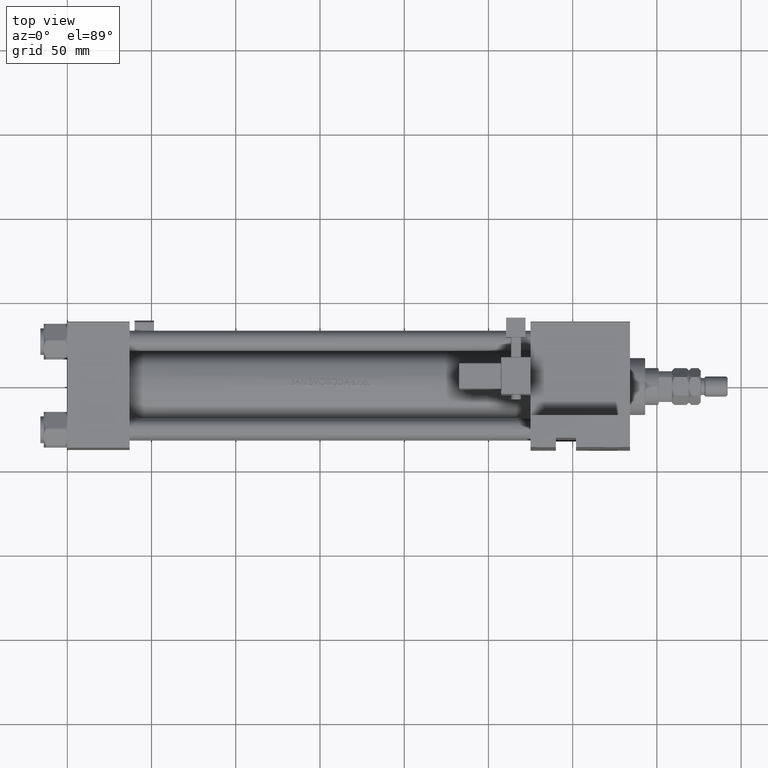
[diagram: clean part render]
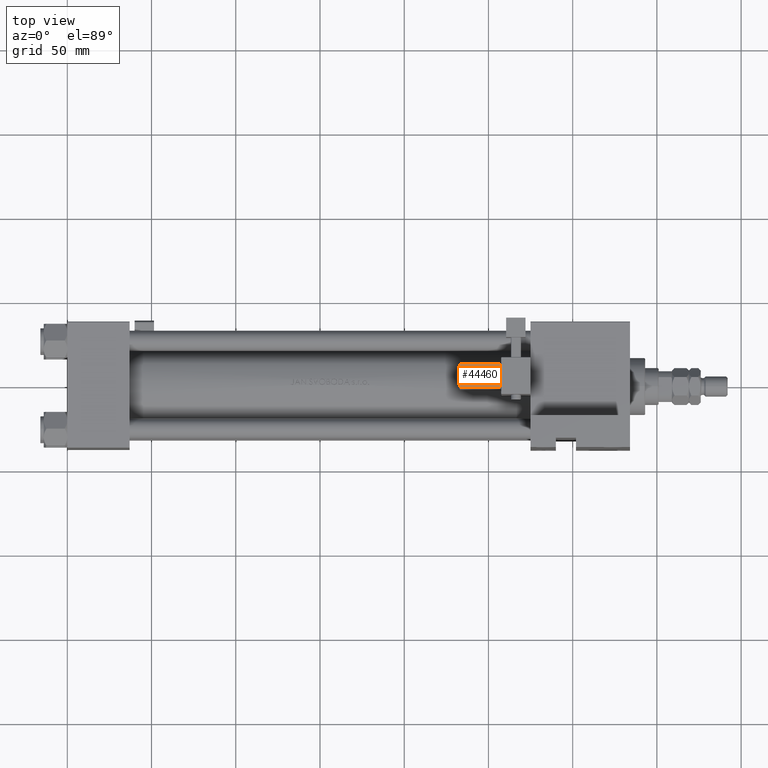
[diagram: same view with one face highlighted and labeled with its STEP entity id]
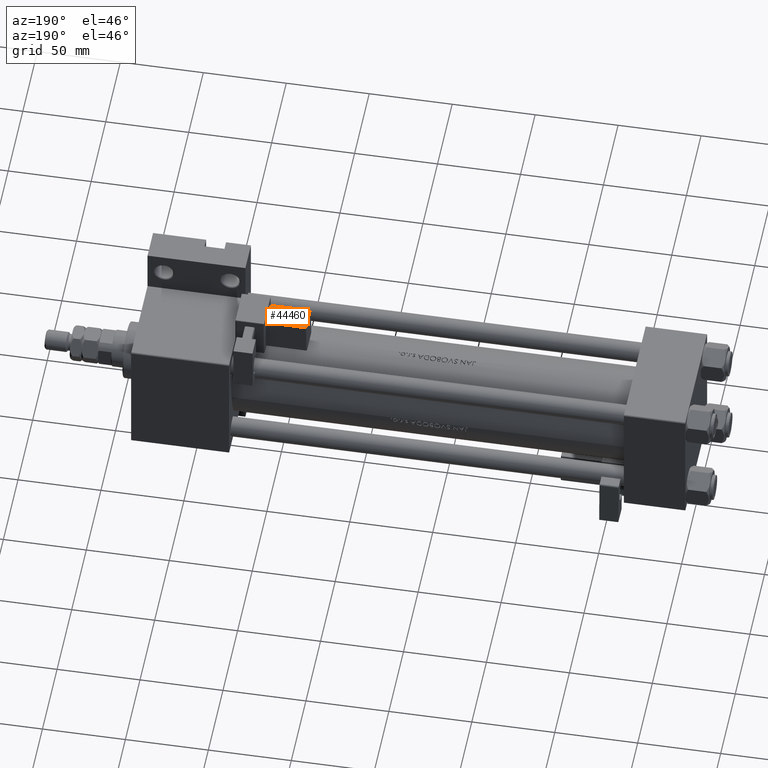
[diagram: same view with one face highlighted and labeled with its STEP entity id]
A machine part, top view. The second image highlights one B-rep face of the part: STEP entity #44460.
A second angle (auxiliary view) of the same face is appended — the face is thin or edge-on in the first view.
In plain terms, the highlighted planar face has unit normal (0, -0.0353, -0.9994).
Its self-contained STEP definition (entity closure, byte-faithful):
#900 = DIRECTION ( 'NONE',  ( -1.543213096464132036E-32, 1.000000000000000000, 1.156482317317871725E-16 ) ) ;
#1979 = LINE ( 'NONE', #45633, #12499 ) ;
#6668 = ORIENTED_EDGE ( 'NONE', *, *, #38631, .T. ) ;
#7202 = EDGE_CURVE ( 'NONE', #50569, #8168, #32795, .T. ) ;
#7595 = CARTESIAN_POINT ( 'NONE',  ( 33.75000000000000000, -21.24999999999999645, 2.000000000000010214 ) ) ;
#8168 = VERTEX_POINT ( 'NONE', #10679 ) ;
#8238 = VECTOR ( 'NONE', #9061, 1000.000000000000000 ) ;
#8397 = VERTEX_POINT ( 'NONE', #32490 ) ;
#8442 = CARTESIAN_POINT ( 'NONE',  ( 9.250000000000005329, -21.24999999999999645, 2.000000000000007105 ) ) ;
#9061 = DIRECTION ( 'NONE',  ( 1.000000000000000000, -0.000000000000000000, 1.334402673828313339E-16 ) ) ;
#10679 = CARTESIAN_POINT ( 'NONE',  ( 9.250000000000005329, -35.75000000000000000, 2.000000000000005329 ) ) ;
#12499 = VECTOR ( 'NONE', #21484, 1000.000000000000000 ) ;
#12593 = LINE ( 'NONE', #8442, #16330 ) ;
#12789 = CARTESIAN_POINT ( 'NONE',  ( 33.75000000000000000, -35.75000000000000000, 2.000000000000008438 ) ) ;
#16330 = VECTOR ( 'NONE', #900, 1000.000000000000000 ) ;
#18678 = VERTEX_POINT ( 'NONE', #47799 ) ;
#20858 = DIRECTION ( 'NONE',  ( -1.000000000000000000, 0.000000000000000000, -1.334402673828313339E-16 ) ) ;
#21484 = DIRECTION ( 'NONE',  ( 5.473822126268816683E-48, -1.000000000000000000, -1.156482317317871725E-16 ) ) ;
#22557 = ORIENTED_EDGE ( 'NONE', *, *, #26445, .T. ) ;
#24471 = CARTESIAN_POINT ( 'NONE',  ( 33.25000000000000000, -35.75000000000000000, 2.000000000000008438 ) ) ;
#26445 = EDGE_CURVE ( 'NONE', #18678, #8397, #44646, .T. ) ;
#27857 = DIRECTION ( 'NONE',  ( -1.334402673828313339E-16, -1.156482317317871725E-16, 1.000000000000000000 ) ) ;
#29034 = EDGE_CURVE ( 'NONE', #8397, #50569, #1979, .T. ) ;
#30358 = ORIENTED_EDGE ( 'NONE', *, *, #7202, .T. ) ;
#30388 = VECTOR ( 'NONE', #20858, 1000.000000000000000 ) ;
#32276 = FACE_OUTER_BOUND ( 'NONE', #49826, .T. ) ;
#32490 = CARTESIAN_POINT ( 'NONE',  ( 33.25000000000000000, -21.75000000000000000, 2.000000000000010214 ) ) ;
#32795 = LINE ( 'NONE', #12789, #30388 ) ;
#35921 = PLANE ( 'NONE',  #45411 ) ;
#38631 = EDGE_CURVE ( 'NONE', #8168, #18678, #12593, .T. ) ;
#44180 = ORIENTED_EDGE ( 'NONE', *, *, #29034, .T. ) ;
#44460 = ADVANCED_FACE ( 'NONE', ( #32276 ), #35921, .F. ) ;
#44646 = LINE ( 'NONE', #48296, #8238 ) ;
#45411 = AXIS2_PLACEMENT_3D ( 'NONE', #7595, #27857, #48134 ) ;
#45633 = CARTESIAN_POINT ( 'NONE',  ( 33.25000000000000000, -36.25000000000000000, 2.000000000000008438 ) ) ;
#47799 = CARTESIAN_POINT ( 'NONE',  ( 9.250000000000005329, -21.75000000000000000, 2.000000000000006661 ) ) ;
#48134 = DIRECTION ( 'NONE',  ( 1.000000000000000000, 0.000000000000000000, 1.334402673828313339E-16 ) ) ;
#48296 = CARTESIAN_POINT ( 'NONE',  ( 33.75000000000000000, -21.75000000000000000, 2.000000000000010214 ) ) ;
#49826 = EDGE_LOOP ( 'NONE', ( #44180, #30358, #6668, #22557 ) ) ;
#50569 = VERTEX_POINT ( 'NONE', #24471 ) ;